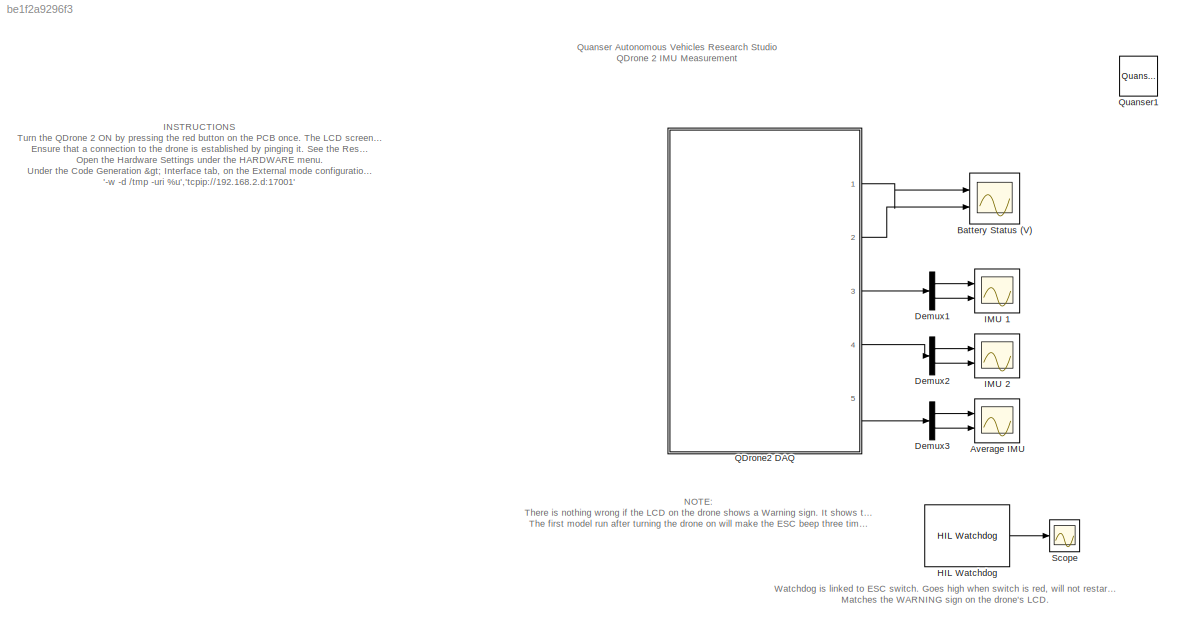
MODEL slx_be1f2a9296f3
KIND model
CONFIG AbsTol = auto
CONFIG EnableMultiTasking = on
CONFIG FixedStep = 0.002
CONFIG MaxStep = auto
CONFIG MinStep = auto
CONFIG RelTol = 1e-3
CONFIG SampleTimeConstraint = Unconstrained
CONFIG SolverName = ode2
CONFIG StartTime = 0.0
CONFIG StopTime = inf
BLOCK [Scope] Average IMU
  Floating = off
  NumInputPorts = 2
  Ports = [2]
  ScopeSpecificationString = Simulink.scopes.TimeScopeBlockCfg('CurrentConfiguration', extmgr.ConfigurationSet(extmgr.Configuration('Core','General UI',true),extmgr.Configuration('Core','Source UI',true),extmgr.Configuration('Sources','WiredSimulink',true,'DataLoggingVariableName','ScopeData4'),extmgr.Configuration('Visuals','Time Domain',true,'SerializedDisplays',{struct('MinYLimReal','-2.30119','MaxYLimReal','2.03927','YLab...<+2112ch>
BLOCK [Scope] Battery Status (V)
  Floating = off
  NumInputPorts = 2
  Ports = [2]
  ScopeSpecificationString = Simulink.scopes.TimeScopeBlockCfg('CurrentConfiguration', extmgr.ConfigurationSet(extmgr.Configuration('Core','General UI',true),extmgr.Configuration('Core','Source UI',true),extmgr.Configuration('Sources','WiredSimulink',true),extmgr.Configuration('Visuals','Time Domain',true,'SerializedDisplays',{struct('MinYLimReal','-1.00000','MaxYLimReal','1.00000','YLabelReal','','MinYLimMag','0.00000','MaxY...<+2019ch>
BLOCK [Demux] Demux1
  Outputs = 2
  Ports = [1, 2]
BLOCK [Demux] Demux2
  Outputs = 2
  Ports = [1, 2]
BLOCK [Demux] Demux3
  Outputs = 2
  Ports = [1, 2]
BLOCK [Reference] HIL Watchdog  REF=quarc_library/Data Acquisition/Generic/Watchdog/HIL Watchdog
  AttributesFormatString = (%<object_name>)
  Ports = [0, 1]
  SourceBlock = quarc_library/Data Acquisition/Generic/Watchdog/HIL Watchdog
  SourceProductName = QUARC Targets
  SourceType = HIL Watchdog
  UserDataPersistent = on
BLOCK [Scope] IMU 1
  Floating = off
  NumInputPorts = 2
  Ports = [2]
  ScopeSpecificationString = Simulink.scopes.TimeScopeBlockCfg('CurrentConfiguration', extmgr.ConfigurationSet(extmgr.Configuration('Core','General UI',true),extmgr.Configuration('Core','Source UI',true),extmgr.Configuration('Sources','WiredSimulink',true,'DataLoggingVariableName','ScopeData2'),extmgr.Configuration('Visuals','Time Domain',true,'SerializedDisplays',{struct('MinYLimReal','-2.30119','MaxYLimReal','2.03927','YLab...<+2130ch>
BLOCK [Scope] IMU 2
  Floating = off
  NumInputPorts = 2
  Ports = [2]
  ScopeSpecificationString = Simulink.scopes.TimeScopeBlockCfg('CurrentConfiguration', extmgr.ConfigurationSet(extmgr.Configuration('Core','General UI',true),extmgr.Configuration('Core','Source UI',true),extmgr.Configuration('Sources','WiredSimulink',true,'DataLoggingVariableName','ScopeData3'),extmgr.Configuration('Visuals','Time Domain',true,'SerializedDisplays',{struct('MinYLimReal','-2.30119','MaxYLimReal','2.03927','YLab...<+2130ch>
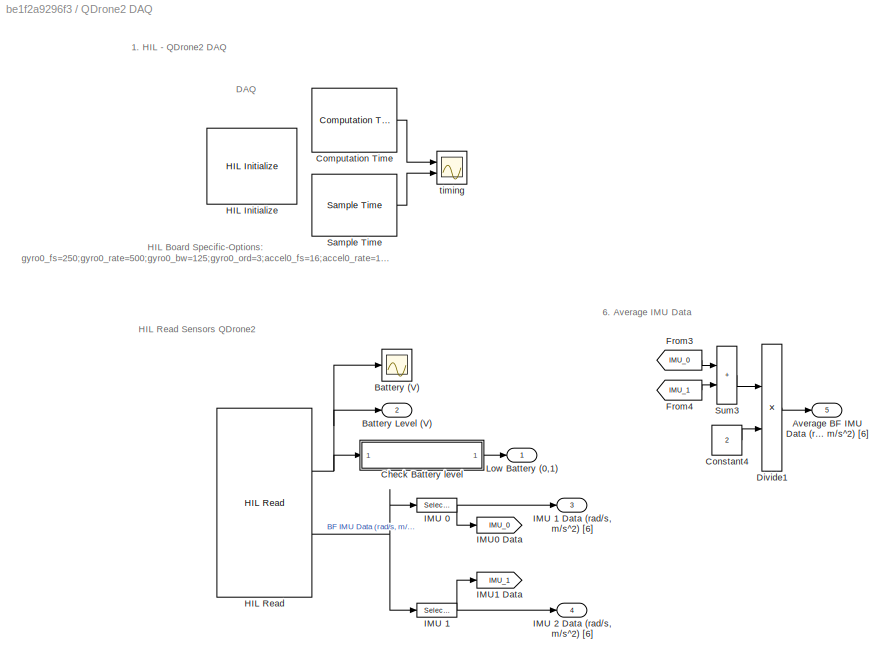
BLOCK [SubSystem] QDrone2 DAQ
  Ports = [0, 5]
BLOCK [Outport] QDrone2 DAQ/Average BF IMU Data (rad//s, m//s^2) [6]
  Port = 5
BLOCK [Scope] QDrone2 DAQ/Battery (V)
  Floating = off
  NumInputPorts = 1
  Ports = [1]
  ScopeSpecificationString = Simulink.scopes.TimeScopeBlockCfg('CurrentConfiguration', extmgr.ConfigurationSet(extmgr.Configuration('Core','General UI',true),extmgr.Configuration('Core','Source UI',true),extmgr.Configuration('Sources','WiredSimulink',true,'DataLoggingVariableName','ScopeData1'),extmgr.Configuration('Visuals','Time Domain',true,'SerializedDisplays',{struct('MinYLimReal','13.04642','MaxYLimReal','18.70722','YLa...<+1438ch>
BLOCK [Outport] QDrone2 DAQ/Battery Level (V)
  Port = 2
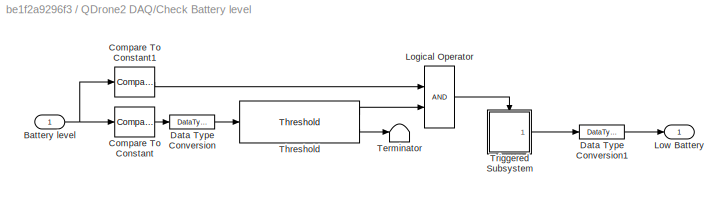
BLOCK [SubSystem] QDrone2 DAQ/Check Battery level
  Ports = [1, 1]
BLOCK [Inport] QDrone2 DAQ/Check Battery level/Battery level
BLOCK [Reference] QDrone2 DAQ/Check Battery level/Compare To Constant  REF=simulink/Logic and Bit
Operations/Compare
To Constant
  Ports = [1, 1]
  SourceBlock = simulink/Logic and Bit\nOperations/Compare\nTo Constant
  SourceType = Compare To Constant
BLOCK [Reference] QDrone2 DAQ/Check Battery level/Compare To Constant1  REF=simulink/Logic and Bit
Operations/Compare
To Constant
  Ports = [1, 1]
  SourceBlock = simulink/Logic and Bit\nOperations/Compare\nTo Constant
  SourceType = Compare To Constant
BLOCK [DataTypeConversion] QDrone2 DAQ/Check Battery level/Data Type Conversion
  RndMeth = Floor
  SaturateOnIntegerOverflow = off
BLOCK [DataTypeConversion] QDrone2 DAQ/Check Battery level/Data Type Conversion1
  RndMeth = Floor
  SaturateOnIntegerOverflow = off
BLOCK [Logic] QDrone2 DAQ/Check Battery level/Logical Operator
  AllPortsSameDT = off
  OutDataTypeStr = boolean
  Ports = [2, 1]
BLOCK [Outport] QDrone2 DAQ/Check Battery level/Low Battery
  VectorParamsAs1DForOutWhenUnconnected = off
BLOCK [Terminator] QDrone2 DAQ/Check Battery level/Terminator
BLOCK [Reference] QDrone2 DAQ/Check Battery level/Threshold  REF=quarc_library/Discontinuities/Threshold
  Ports = [1, 2]
  SourceBlock = quarc_library/Discontinuities/Threshold
  SourceProductName = QUARC Targets
  SourceType = Threshold
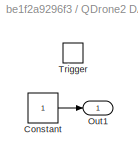
BLOCK [SubSystem] QDrone2 DAQ/Check Battery level/Triggered Subsystem
  Ports = [0, 1, 0, 1]
  TreatAsAtomicUnit = on
BLOCK [Constant] QDrone2 DAQ/Check Battery level/Triggered Subsystem/Constant
BLOCK [Outport] QDrone2 DAQ/Check Battery level/Triggered Subsystem/Out1
  InitialOutput = [0]
BLOCK [TriggerPort] QDrone2 DAQ/Check Battery level/Triggered Subsystem/Trigger
  Ports = []
  StatesWhenEnabling = held
  VariantControl = (inherit)
BLOCK [Reference] QDrone2 DAQ/Computation Time  REF=quarc_library/Sources/Time/Computation Time
  Ports = [0, 1]
  SourceBlock = quarc_library/Sources/Time/Computation Time
  SourceProductName = QUARC Targets
  SourceType = Computation Time
BLOCK [Constant] QDrone2 DAQ/Constant4
  Value = 2
BLOCK [Product] QDrone2 DAQ/Divide1
  Inputs = */
  Ports = [2, 1]
BLOCK [From] QDrone2 DAQ/From3
  GotoTag = IMU_0
BLOCK [From] QDrone2 DAQ/From4
  GotoTag = IMU_1
BLOCK [Reference] QDrone2 DAQ/HIL Initialize  REF=quarc_library/Data Acquisition/Generic/Configuration/HIL Initialize
  AttributesFormatString = %<object_name> (%<board_type>-%<board_number>)
  Ports = []
  SourceBlock = quarc_library/Data Acquisition/Generic/Configuration/HIL Initialize
  SourceProductName = QUARC Targets
  SourceType = HIL Initialize
  UserDataPersistent = on
BLOCK [Reference] QDrone2 DAQ/HIL Read  REF=quarc_library/Data Acquisition/Generic/Immediate I//O/HIL Read
  AttributesFormatString = (%<object_name>)
  Ports = [0, 2]
  SourceBlock = quarc_library/Data Acquisition/Generic/Immediate I//O/HIL Read
  SourceProductName = QUARC Targets
  SourceType = HIL Read
  UserDataPersistent = on
BLOCK [Selector] QDrone2 DAQ/IMU 0
  IndexOptions = Index vector (dialog)
  Indices = [1:6]
  InputPortWidth = 12
  OutputSizes = 1
  Ports = [1, 1]
BLOCK [Selector] QDrone2 DAQ/IMU 1
  IndexOptions = Index vector (dialog)
  Indices = [7:12]
  InputPortWidth = 12
  OutputSizes = 1
  Ports = [1, 1]
BLOCK [Outport] QDrone2 DAQ/IMU 1 Data (rad//s, m//s^2) [6]
  Port = 3
BLOCK [Outport] QDrone2 DAQ/IMU 2 Data (rad//s, m//s^2) [6]
  Port = 4
BLOCK [Goto] QDrone2 DAQ/IMU0 Data
  GotoTag = IMU_0
BLOCK [Goto] QDrone2 DAQ/IMU1 Data
  GotoTag = IMU_1
BLOCK [Outport] QDrone2 DAQ/Low Battery (0,1)
BLOCK [Reference] QDrone2 DAQ/Sample Time  REF=quarc_library/Sources/Time/Sample Time
  Ports = [0, 1]
  Priority = -99
  SourceBlock = quarc_library/Sources/Time/Sample Time
  SourceProductName = QUARC Targets
  SourceType = Sample Time
BLOCK [Sum] QDrone2 DAQ/Sum3
  IconShape = rectangular
  Ports = [2, 1]
BLOCK [Scope] QDrone2 DAQ/timing
  Floating = off
  NumInputPorts = 2
  Ports = [2]
  ScopeSpecificationString = Simulink.scopes.TimeScopeBlockCfg('CurrentConfiguration', extmgr.ConfigurationSet(extmgr.Configuration('Core','General UI',true),extmgr.Configuration('Core','Source UI',true),extmgr.Configuration('Sources','WiredSimulink',true,'DataLoggingVariableName','ScopeData2','DataLoggingLimitDataPoints',true,'DataLoggingSaveFormat','Array','DataLoggingDecimation','1','DataLoggingDecimateData',true),extmgr.C...<+1569ch>
BLOCK [Reference] Quanser1  REF=quarc_library/Logos/Quanser
  Ports = []
  SourceBlock = quarc_library/Logos/Quanser
  SourceProductName = QUARC Targets
  SourceType = Powered by Quanser
BLOCK [Scope] Scope
  Floating = off
  NumInputPorts = 1
  Ports = [1]
  ScopeSpecificationString = Simulink.scopes.TimeScopeBlockCfg('CurrentConfiguration', extmgr.ConfigurationSet(extmgr.Configuration('Core','General UI',true),extmgr.Configuration('Core','Source UI',true),extmgr.Configuration('Sources','WiredSimulink',true,'DataLoggingVariableName','ScopeData1'),extmgr.Configuration('Visuals','Time Domain',true,'SerializedDisplays',{struct('MinYLimReal','-.2','MaxYLimReal','1.2','YLabelReal','...<+1356ch>
ANNOTATION (root): INSTRUCTIONS Turn the QDrone 2 ON by pressing the red button on the PCB once. The LCD screen should turn on. Ensure that a connection to the drone is established by pinging it. See the Research Studio Setup documentation (step 8 - Vehicle Comms ). Open the Hardware Settings under the HARDWARE menu. Under the Code Generation > Interface tab, on the External mode configuration, enter the following M...<+880ch>
ANNOTATION (root): NOTE: There is nothing wrong if the LCD on the drone shows a Warning sign . It shows that the motors were disabled through hardware (Watchdog timeout). When starting a model while the ESC switch is green, it will dissapear. The first model run after turning the drone on will make the ESC beep three times on startup. Any subsequent model ran will beep 5 times consecutively. It is normal behaviour.
ANNOTATION (root): Watchdog is linked to ESC switch. Goes high when switch is red, will not restart until model is restarted and ESC switch is green. Matches the WARNING sign on the drone's LCD.
ANNOTATION (root): Quanser Autonomous Vehicles Research Studio QDrone 2 IMU Measurement
ANNOTATION QDrone2 DAQ: 1. HIL - QDrone2 DAQ
ANNOTATION QDrone2 DAQ: 6. Average IMU Data
ANNOTATION QDrone2 DAQ: HIL Board Specific-Options: gyro0_fs=250;gyro0_rate=500;gyro0_bw=125;gyro0_ord=3;accel0_fs=16;accel0_rate=1000;accel0_bw=400;accel0_ord=3;temp0_bw=4000;gyro1_fs=250;gyro1_rate=500;gyro1_bw=125;gyro1_ord=3;accel1_fs=16;accel1_rate=1000;accel1_bw=400;accel1_ord=3;temp1_bw=4000;enc0_dir=0;enc1_dir=0;pwm03_dshot=1;opt_rate=121;
ANNOTATION QDrone2 DAQ: DAQ
ANNOTATION QDrone2 DAQ: HIL Read Sensors QDrone2
LINE Demux1:1 -> IMU 1:1
LINE Demux1:2 -> IMU 1:2
LINE Demux2:1 -> IMU 2:1
LINE Demux2:2 -> IMU 2:2
LINE Demux3:1 -> Average IMU:1
LINE Demux3:2 -> Average IMU:2
LINE HIL Watchdog:1 -> Scope:1
NET QDrone2 DAQ/Check Battery level/Battery level:1 -> QDrone2 DAQ/Check Battery level/Compare To Constant1:1, QDrone2 DAQ/Check Battery level/Compare To Constant:1
LINE QDrone2 DAQ/Check Battery level/Compare To Constant1:1 -> QDrone2 DAQ/Check Battery level/Logical Operator:1
LINE QDrone2 DAQ/Check Battery level/Compare To Constant:1 -> QDrone2 DAQ/Check Battery level/Data Type Conversion:1
LINE QDrone2 DAQ/Check Battery level/Data Type Conversion1:1 -> QDrone2 DAQ/Check Battery level/Low Battery:1
LINE QDrone2 DAQ/Check Battery level/Data Type Conversion:1 -> QDrone2 DAQ/Check Battery level/Threshold:1
LINE QDrone2 DAQ/Check Battery level/Logical Operator:1 -> QDrone2 DAQ/Check Battery level/Triggered Subsystem:trigger
LINE QDrone2 DAQ/Check Battery level/Threshold:1 -> QDrone2 DAQ/Check Battery level/Logical Operator:2
LINE QDrone2 DAQ/Check Battery level/Threshold:2 -> QDrone2 DAQ/Check Battery level/Terminator:1
LINE QDrone2 DAQ/Check Battery level/Triggered Subsystem/Constant:1 -> QDrone2 DAQ/Check Battery level/Triggered Subsystem/Out1:1
LINE QDrone2 DAQ/Check Battery level/Triggered Subsystem:1 -> QDrone2 DAQ/Check Battery level/Data Type Conversion1:1
LINE QDrone2 DAQ/Check Battery level:1 -> QDrone2 DAQ/Low Battery (0,1):1
LINE QDrone2 DAQ/Computation Time:1 -> QDrone2 DAQ/timing:1
LINE QDrone2 DAQ/Constant4:1 -> QDrone2 DAQ/Divide1:2
LINE QDrone2 DAQ/Divide1:1 -> QDrone2 DAQ/Average BF IMU Data (rad//s, m//s^2) [6]:1
LINE QDrone2 DAQ/From3:1 -> QDrone2 DAQ/Sum3:1
LINE QDrone2 DAQ/From4:1 -> QDrone2 DAQ/Sum3:2
NET QDrone2 DAQ/HIL Read:1 -> QDrone2 DAQ/Battery (V):1, QDrone2 DAQ/Battery Level (V):1, QDrone2 DAQ/Check Battery level:1
NET QDrone2 DAQ/HIL Read:2 -> QDrone2 DAQ/IMU 0:1, QDrone2 DAQ/IMU 1:1
NET QDrone2 DAQ/IMU 0:1 -> QDrone2 DAQ/IMU 1 Data (rad//s, m//s^2) [6]:1, QDrone2 DAQ/IMU0 Data:1
NET QDrone2 DAQ/IMU 1:1 -> QDrone2 DAQ/IMU 2 Data (rad//s, m//s^2) [6]:1, QDrone2 DAQ/IMU1 Data:1
LINE QDrone2 DAQ/Sample Time:1 -> QDrone2 DAQ/timing:2
LINE QDrone2 DAQ/Sum3:1 -> QDrone2 DAQ/Divide1:1
LINE QDrone2 DAQ:1 -> Battery Status (V):1
LINE QDrone2 DAQ:2 -> Battery Status (V):2
LINE QDrone2 DAQ:3 -> Demux1:1
LINE QDrone2 DAQ:4 -> Demux2:1
LINE QDrone2 DAQ:5 -> Demux3:1
note: NET lines group one-source signal fan-out (src -> all destinations, sorted); 1:1 wires keep LINE
